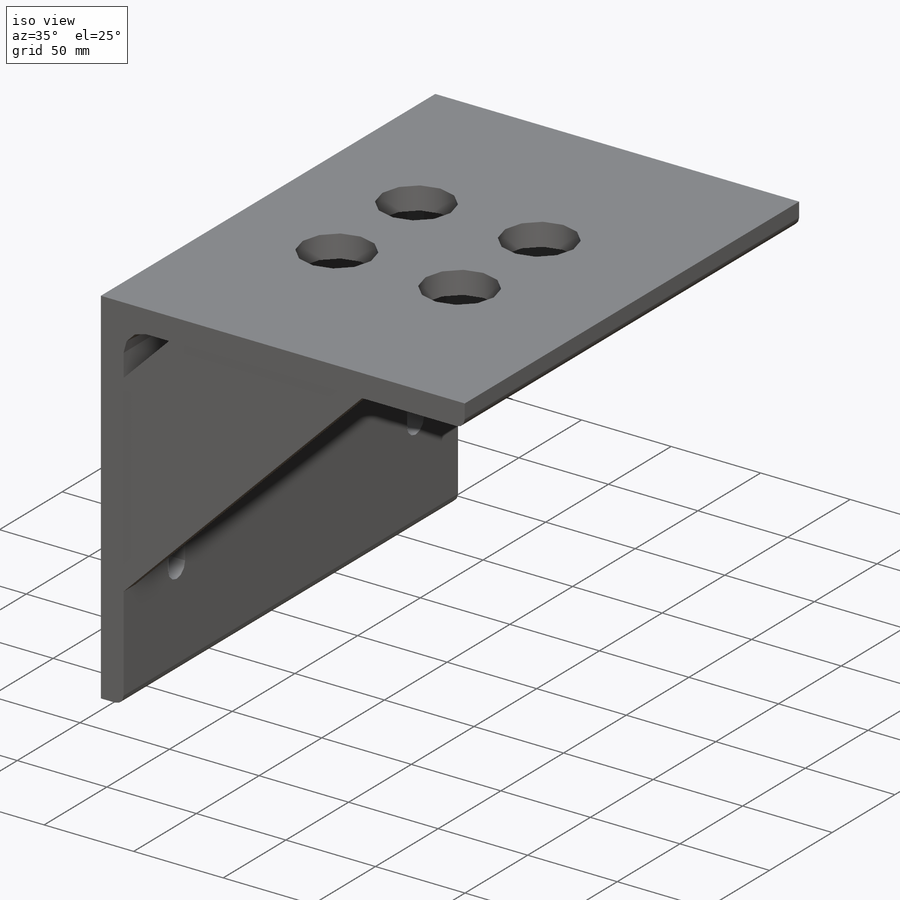
[diagram: iso view]
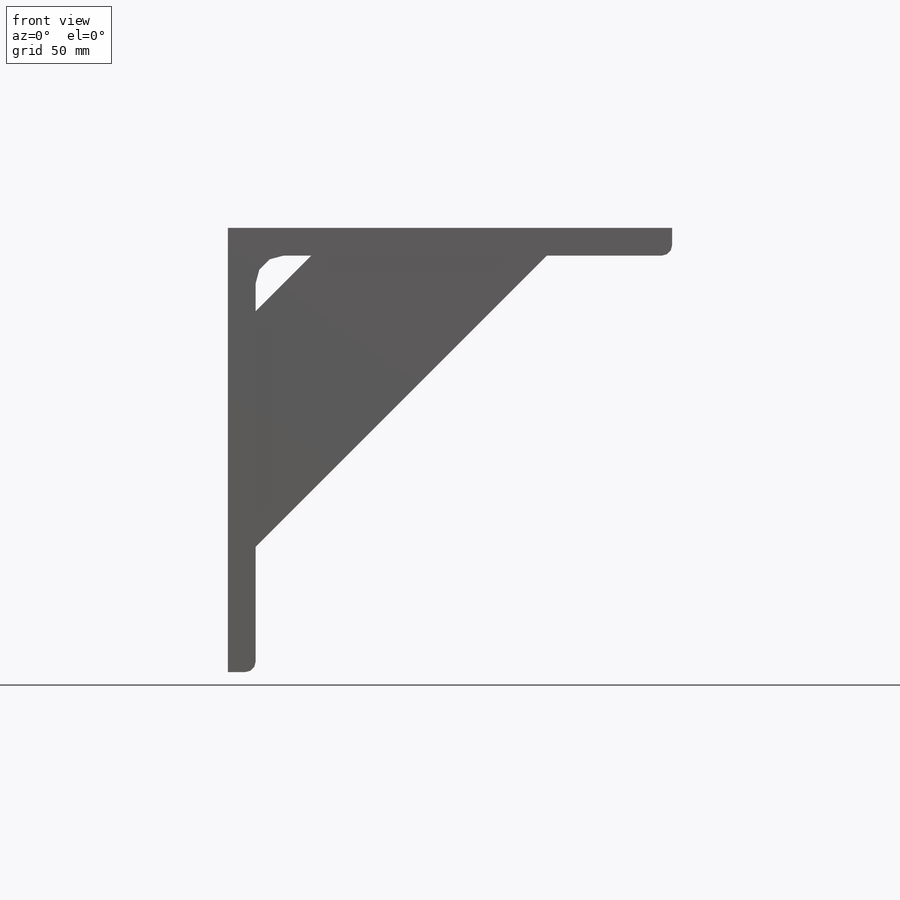
[diagram: front view]
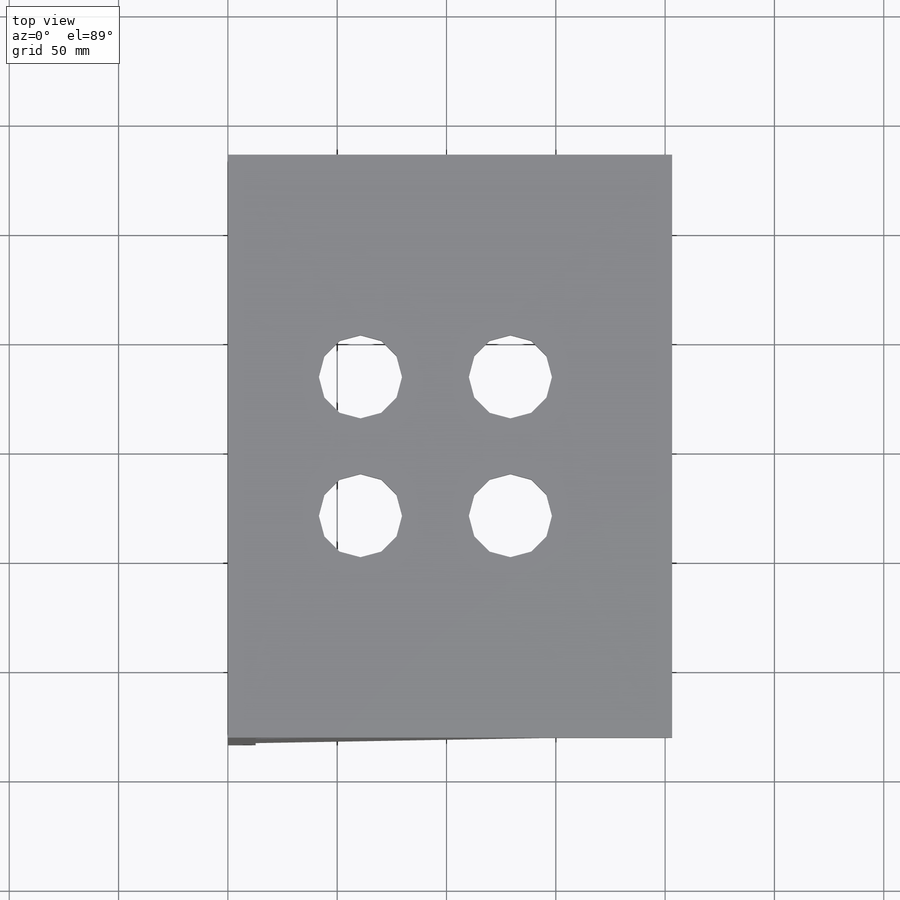
[diagram: top view]
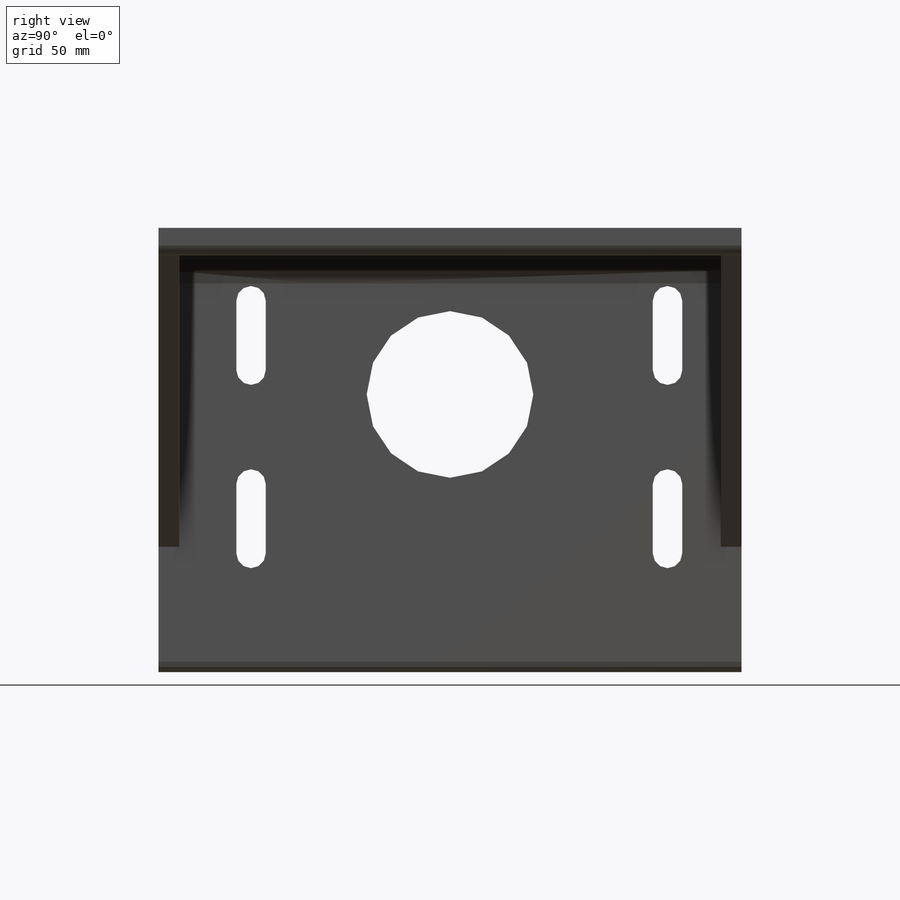
[diagram: right view]
SOLIDWORKS PART (.sldprt)
format: sldprt  version: not decoded by parser v0  size: 306,176 bytes
history: native  units: mm
features: sketch x7, plane x4, cut_extrude x4, extrude x2, pattern_linear x2, material x1, mirror x1 (+11 scaffold rows collapsed)
feature tree (32):
  scaffold x11  (default folders/planes/origin — collapsed)
  material  "ASTM A36 Steel"
  plane  "Plane1"
  plane  "Plane2"
  plane  "Plane3"
  sketch  "Sketch1"  dims[c1.D3=4.7498mm c1.D5=4.7498mm c1.D6=12.7mm c1.D10=4.7498mm c1.D1=76.2mm c1.D2=203.2mm c1.D4=96.8502mm c2.D5=1.6002mm c2.D7=12.7mm c2.D8=12.7mm c2.D1=96.8502mm c2.D4=203.2mm c2.D9=96.8502mm c2.D11=1.6002mm c3.D5=12.7mm c3.D7=12.7mm]
  extrude  "Base-Extrude"  Depth=266.7mm
  sketch  "Sketch2"  dims[c1.D1=6.731mm c1.D4=9.525mm c1.D3=6.731mm c1.D2=38.1mm c2.D3=~59.68498mm c2.D2=~33.853409mm c2.D4=31.75mm c2.D5=25.4mm c3.D3=42.8625mm c3.D1=13.462mm c4.D3=33.3375mm]
  cut_extrude  "Cut-Extrude1"  [1 undecoded]
  plane  "Plane5"  Offset=127mm
  pattern_linear  "LPattern1"  Count1=2 Count2=2 Spacing1=190.5mm Spacing2=83.82mm
  sketch  "Sketch8"  dims[D1=38.1mm D2=101.6mm D3=60.6425mm]
  pattern_linear  "LPattern2"  Count1=2 Count2=2 Spacing1=68.58mm Spacing2=63.5mm
  sketch  "Sketch9"  dims[c1.D1=38.1mm c1.D2=~35.921024mm c2.D2=45.0deg c2.D3=76.2mm]
  extrude  "Extrude1"  Depth=9.525mm
  mirror  "Mirror1"
  sketch  "Sketch12"  dims[D1=76.2mm D2=50.8mm]
  cut_extrude  "Cut-Extrude6"  [1 undecoded]
  sketch  "Sketch14"
  cut_extrude  "SIDE RELIEF CUT "  Depth=0.0254mm
  sketch  "Sketch15"
  cut_extrude  "SIDE RELIEF CUT 2"  Depth=0.0254mm
decode coverage: 11 of 16 modeling features carry decoded parameters
note: ~ marks probable driven/reference dimensions
note: 2 parameter values undecoded
note: suppression state not decoded; provenance and decode notes live in map.json
